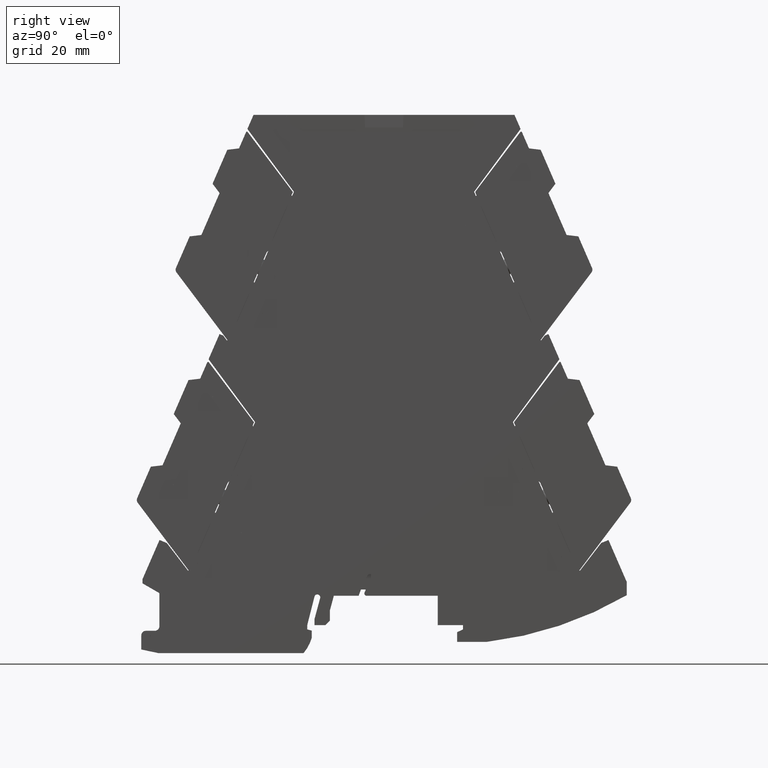
[diagram: clean part render]
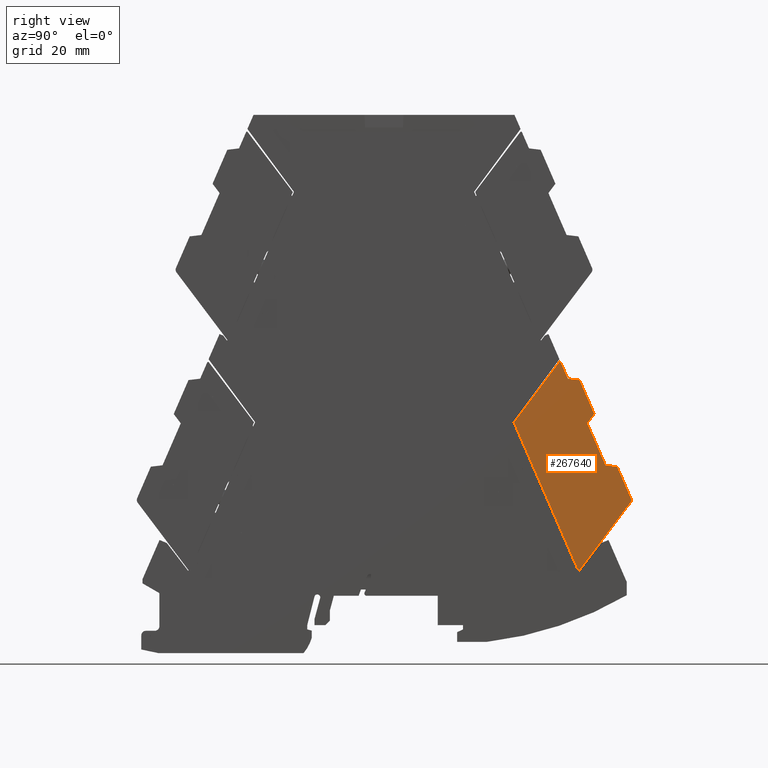
[diagram: same view with one face highlighted and labeled with its STEP entity id]
A machine part, right view. The second image highlights one B-rep face of the part: STEP entity #267640.
In plain terms, the highlighted planar face has unit normal (1, -0, 0).
Its self-contained STEP definition (entity closure, byte-faithful):
#208470=CARTESIAN_POINT('',(-127.834970243558,23.5417332228139,
-9.55000000252271));
#208480=VERTEX_POINT('',#208470);
#208510=CARTESIAN_POINT('',(-2.8421709430404E-14,22.4261353561558,
-9.55000001550444));
#208520=DIRECTION('',(-0.999961923133656,0.00872652753623981,
1.01546791808627E-10));
#208530=VECTOR('',#208520,1.);
#208540=LINE('',#208510,#208530);
#208550=CARTESIAN_POINT('',(-144.491342192195,23.6870910457856,
-9.55000000083125));
#208560=VERTEX_POINT('',#208550);
#208570=EDGE_CURVE('',#208480,#208560,#208540,.T.);
#208800=CARTESIAN_POINT('',(-142.601348859071,-7.12310506249165,
-9.55000000094918));
#208810=VERTEX_POINT('',#208800);
#208970=CARTESIAN_POINT('',(-143.476039707181,-7.62296120132255,
-9.55000000085919));
#208980=VERTEX_POINT('',#208970);
#209010=CARTESIAN_POINT('',(-143.467313179645,-6.6229992781889,
-9.55000000086248));
#209020=DIRECTION('',(1.00774222510954E-10,1.12576479819879E-12,1.));
#209030=DIRECTION('',(0.999961923133654,-0.00872652753639959,
-1.00760561326841E-10));
#209040=AXIS2_PLACEMENT_3D('',#209010,#209020,#209030);
#209050=CIRCLE('',#209040,1.);
#209060=EDGE_CURVE('',#208980,#208810,#209050,.T.);
#209800=CARTESIAN_POINT('',(-162.213817258033,-7.45943924342349,
-9.54999999895636));
#209810=VERTEX_POINT('',#209800);
#209840=CARTESIAN_POINT('',(-2.8421709430404E-14,-8.87505648875294,
-9.55000001542928));
#209850=DIRECTION('',(0.999961923133656,-0.00872652753623987,
-1.01546791808627E-10));
#209860=VECTOR('',#209850,1.);
#209870=LINE('',#209840,#209860);
#209880=EDGE_CURVE('',#209810,#208980,#209870,.T.);
#210020=CARTESIAN_POINT('',(-127.66352268495,23.2417196813266,
-9.5500000025394));
#210030=VERTEX_POINT('',#210020);
#210060=CARTESIAN_POINT('',(-127.836715549065,23.3417408381872,
-9.55000000252205));
#210070=DIRECTION('',(-1.00774222510954E-10,-1.12576479819879E-12,-1.));
#210080=DIRECTION('',(0.999961923133654,-0.00872652753639959,
-1.00760561326841E-10));
#210090=AXIS2_PLACEMENT_3D('',#210060,#210070,#210080);
#210100=CIRCLE('',#210090,0.2);
#210110=EDGE_CURVE('',#208480,#210030,#210100,.T.);
#216180=CARTESIAN_POINT('',(-138.794183140722,-0.530760447698506,
-9.55000000135176));
#216190=VERTEX_POINT('',#216180);
#216220=CARTESIAN_POINT('',(-139.096507752099,-1.77635683940025E-15,
-9.55000000132233));
#216230=DIRECTION('',(-0.494944961437488,0.86892432647938,
4.81859274703567E-11));
#216240=VECTOR('',#216230,1.);
#216250=LINE('',#216220,#216240);
#216260=CARTESIAN_POINT('',(-140.084358501353,1.73426868406695,
-9.55000000122615));
#216270=VERTEX_POINT('',#216260);
#216280=EDGE_CURVE('',#216190,#216270,#216250,.T.);
#216450=CARTESIAN_POINT('',(-138.487662001609,-1.77635683940025E-15,
-9.55000000138417));
#216460=DIRECTION('',(-0.500105784302748,-0.865964320573852,
5.28759258600076E-11));
#216470=VECTOR('',#216460,1.);
#216480=LINE('',#216450,#216470);
#216490=CARTESIAN_POINT('',(-128.335752732167,17.5786633327923,
-9.55000000245753));
#216500=VERTEX_POINT('',#216490);
#216510=CARTESIAN_POINT('',(-132.434530595542,10.4813741210917,
-9.55000000202417));
#216520=VERTEX_POINT('',#216510);
#216530=EDGE_CURVE('',#216500,#216520,#216480,.T.);
#217030=CARTESIAN_POINT('',(-118.322831491231,-1.77635683940025E-15,
-9.55000000343234));
#217040=DIRECTION('',(-0.494944961437488,0.86892432647938,
4.81859274703567E-11));
#217050=VECTOR('',#217040,1.);
#217060=LINE('',#217030,#217050);
#217070=CARTESIAN_POINT('',(-129.625928092798,19.8436924645577,
-9.55000000233192));
#217080=VERTEX_POINT('',#217070);
#217090=EDGE_CURVE('',#216500,#217080,#217060,.T.);
#217330=CARTESIAN_POINT('',(-2.8421709430404E-14,9.32563653623511,
-9.55000001547298));
#217340=DIRECTION('',(0.999961923133656,-0.00872652753623987,
-1.01546791808627E-10));
#217350=VECTOR('',#217340,1.);
#217360=LINE('',#217330,#217350);
#217370=CARTESIAN_POINT('',(-135.019760828803,10.5039350629597,
-9.55000000176163));
#217380=VERTEX_POINT('',#217370);
#217390=EDGE_CURVE('',#217380,#216520,#217360,.T.);
#217900=CARTESIAN_POINT('',(-141.08592147552,-1.77635683940025E-15,
-9.55000000112026));
#217910=DIRECTION('',(-0.500105784302748,-0.865964320573852,
5.28759258600076E-11));
#217920=VECTOR('',#217910,1.);
#217930=LINE('',#217900,#217920);
#217940=EDGE_CURVE('',#217380,#216270,#217930,.T.);
#230310=CARTESIAN_POINT('',(-141.08592147552,-1.77635683940025E-15,
-9.55000000112026));
#230320=DIRECTION('',(-0.500105784302748,-0.865964320573852,
5.28759258600076E-11));
#230330=VECTOR('',#230320,1.);
#230340=LINE('',#230310,#230330);
#230350=EDGE_CURVE('',#210030,#217080,#230340,.T.);
#239780=CARTESIAN_POINT('',(-158.170948803993,-1.77635683940025E-15,
-9.54999999938491));
#239790=DIRECTION('',(0.500105784302748,0.865964320573852,
-5.28758981044319E-11));
#239800=VECTOR('',#239790,1.);
#239810=LINE('',#239780,#239800);
#239820=CARTESIAN_POINT('',(-162.209750519817,-6.99343677588575,
-9.54999999895789));
#239830=VERTEX_POINT('',#239820);
#239840=EDGE_CURVE('',#239830,#208560,#239810,.T.);
#254980=CARTESIAN_POINT('',(-162.148719777324,-1.77635683940025E-15,
-9.54999999898088));
#254990=DIRECTION('',(0.00872652754141354,0.999961923133611,
-3.28746491834453E-12));
#255000=VECTOR('',#254990,1.);
#255010=LINE('',#254980,#255000);
#255020=EDGE_CURVE('',#209810,#239830,#255010,.T.);
#267390=CARTESIAN_POINT('',(-146.763942497471,10.8898733385578,
-9.55000000056969));
#267400=DIRECTION('',(1.01571614201302E-10,2.40118788303072E-12,1.));
#267410=DIRECTION('',(-1.08412129273731E-9,1.,-2.40118777291478E-12));
#267420=AXIS2_PLACEMENT_3D('',#267390,#267400,#267410);
#267430=PLANE('',#267420);
#267440=ORIENTED_EDGE('',*,*,#210110,.F.);
#267450=ORIENTED_EDGE('',*,*,#230350,.F.);
#267460=ORIENTED_EDGE('',*,*,#217090,.T.);
#267470=ORIENTED_EDGE('',*,*,#216530,.F.);
#267480=ORIENTED_EDGE('',*,*,#217390,.T.);
#267490=ORIENTED_EDGE('',*,*,#217940,.F.);
#267500=ORIENTED_EDGE('',*,*,#216280,.T.);
#267510=CARTESIAN_POINT('',(-138.487662001609,-1.77635683940025E-15,
-9.55000000138417));
#267520=DIRECTION('',(-0.500105784302748,-0.865964320573852,
5.28759258600076E-11));
#267530=VECTOR('',#267520,1.);
#267540=LINE('',#267510,#267530);
#267550=EDGE_CURVE('',#216190,#208810,#267540,.T.);
#267560=ORIENTED_EDGE('',*,*,#267550,.F.);
#267570=ORIENTED_EDGE('',*,*,#209060,.T.);
#267580=ORIENTED_EDGE('',*,*,#209880,.T.);
#267590=ORIENTED_EDGE('',*,*,#255020,.F.);
#267600=ORIENTED_EDGE('',*,*,#239840,.F.);
#267610=ORIENTED_EDGE('',*,*,#208570,.T.);
#267620=EDGE_LOOP('',(#267610,#267600,#267590,#267580,#267570,#267560,
#267500,#267490,#267480,#267470,#267460,#267450,#267440));
#267630=FACE_OUTER_BOUND('',#267620,.T.);
#267640=ADVANCED_FACE('',(#267630),#267430,.T.);